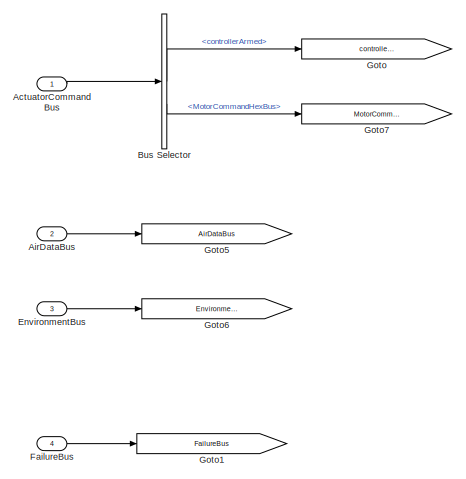
[diagram: root canvas - part 1/2, left side, full height]
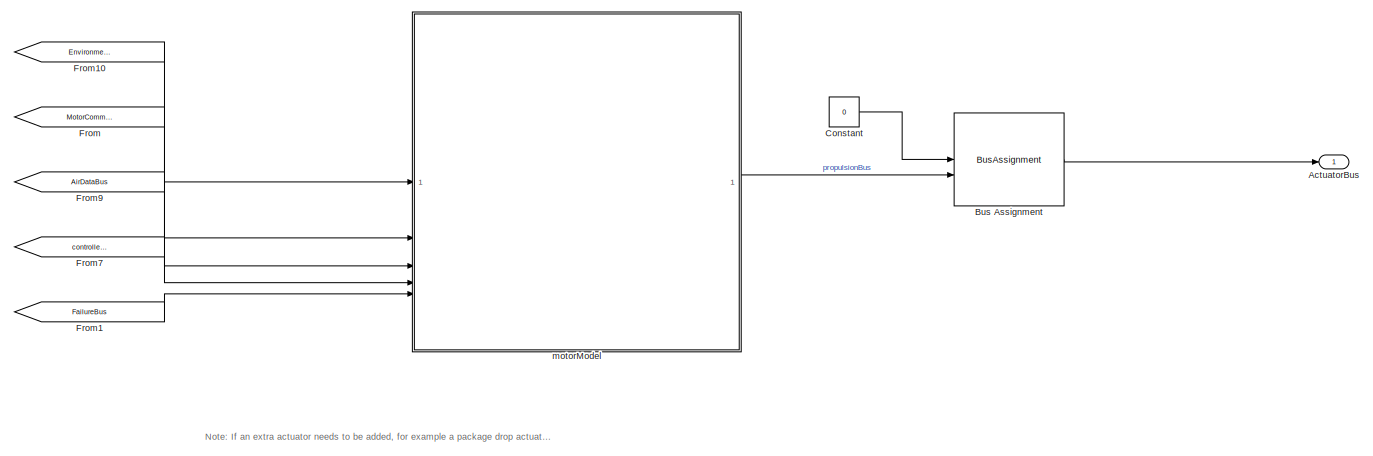
[diagram: root canvas - part 2/2, right side, full height]
MODEL slx_e08739c9866d
KIND model
BLOCK [Outport] ActuatorBus
  OutDataTypeStr = Bus: ActuatorBus
BLOCK [Inport] ActuatorCommandBus
  OutDataTypeStr = Bus: ActuatorCommandBus
BLOCK [Inport] AirDataBus
  OutDataTypeStr = Bus: AirDataBus
  Port = 2
BLOCK [BusAssignment] Bus Assignment
  AssignedSignals = PropulsionBus
BLOCK [BusSelector] Bus Selector
  OutputSignals = controllerArmed,ServosCommandBus.MotorCommandHexBus
BLOCK [Constant] Constant
  OutDataTypeStr = Bus: ActuatorBus
  Value = 0
BLOCK [Inport] EnvironmentBus
  OutDataTypeStr = Bus: EnvironmentBus
  Port = 3
BLOCK [Inport] FailureBus
  OutDataTypeStr = Bus: FailureBus
  Port = 4
BLOCK [From] From
  GotoTag = MotorCommandBus
BLOCK [From] From1
  GotoTag = FailureBus
BLOCK [From] From10
  GotoTag = EnvironmentBus
BLOCK [From] From7
  GotoTag = controllerArmed
BLOCK [From] From9
  GotoTag = AirDataBus
BLOCK [Goto] Goto
  GotoTag = controllerArmed
BLOCK [Goto] Goto1
  GotoTag = FailureBus
BLOCK [Goto] Goto5
  GotoTag = AirDataBus
BLOCK [Goto] Goto6
  GotoTag = EnvironmentBus
BLOCK [Goto] Goto7
  GotoTag = MotorCommandBus
BLOCK [ModelReference] motorModel
  ModelNameDialog = hexMotorModel.slx
  ModelReferenceVersion = 1.207
ANNOTATION (root): Note: If an extra actuator needs to be added, for example a package drop actuator, add it here. If motor model is the only model here then this model will not have a harness.
LINE ActuatorCommandBus:1 -> Bus Selector:1
LINE AirDataBus:1 -> Goto5:1
LINE Bus Assignment:1 -> ActuatorBus:1
LINE Bus Selector:1 -> Goto:1
LINE Bus Selector:2 -> Goto7:1
LINE Constant:1 -> Bus Assignment:1
LINE EnvironmentBus:1 -> Goto6:1
LINE FailureBus:1 -> Goto1:1
LINE From10:1 -> motorModel:1
LINE From1:1 -> motorModel:5
LINE From7:1 -> motorModel:4
LINE From9:1 -> motorModel:3
LINE From:1 -> motorModel:2
LINE motorModel:1 -> Bus Assignment:2
